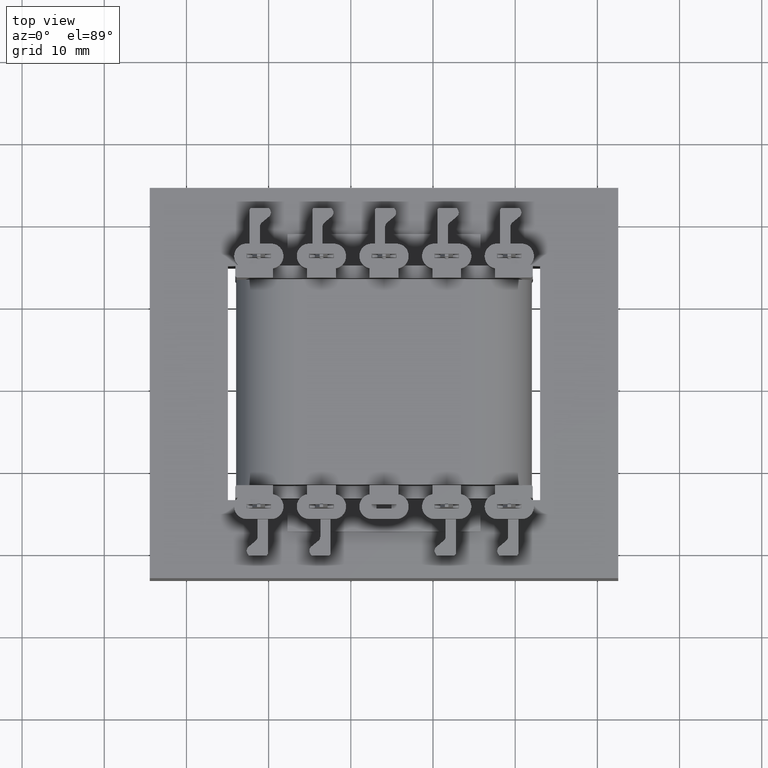
[diagram: clean part render]
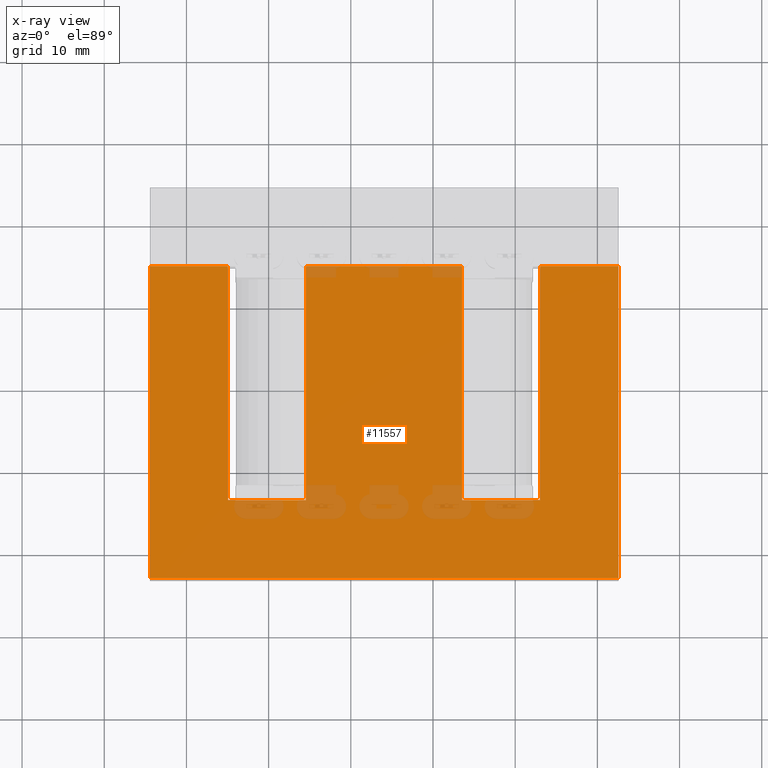
[diagram: x-ray — body ghosted, one internal face saturated and labeled with its STEP entity id]
A machine part, top view, then the same camera in x-ray: the body is ghosted and one INTERNAL B-rep face — a face not visible from any outside direction — is saturated and labeled: STEP entity #11557.
In plain terms, the highlighted planar face has unit normal (0, 0, 1).
Its self-contained STEP definition (entity closure, byte-faithful):
#4 = CARTESIAN_POINT ( 'NONE',  ( 9.499999999999998224, 2.891205793294678228E-15, 0.4000000000000000222 ) ) ;
#61 = CARTESIAN_POINT ( 'NONE',  ( -9.500000000000007105, 18.99999999999999645, 0.4000000000000000222 ) ) ;
#84 = VECTOR ( 'NONE', #1016, 1000.000000000000000 ) ;
#457 = VERTEX_POINT ( 'NONE', #3205 ) ;
#571 = ORIENTED_EDGE ( 'NONE', *, *, #2828, .F. ) ;
#677 = VECTOR ( 'NONE', #5501, 1000.000000000000000 ) ;
#688 = VECTOR ( 'NONE', #3456, 1000.000000000000000 ) ;
#880 = CARTESIAN_POINT ( 'NONE',  ( -2.312964634635741872E-15, 18.99999999999999645, 0.4000000000000000222 ) ) ;
#886 = EDGE_CURVE ( 'NONE', #6708, #4938, #6665, .T. ) ;
#898 = CARTESIAN_POINT ( 'NONE',  ( -2.312964634635741872E-15, 18.99999999999999645, 0.4000000000000000222 ) ) ;
#969 = EDGE_CURVE ( 'NONE', #13421, #2872, #11206, .T. ) ;
#1016 = DIRECTION ( 'NONE',  ( -1.000000000000000000, -1.826024711554533667E-16, 0.000000000000000000 ) ) ;
#1109 = ORIENTED_EDGE ( 'NONE', *, *, #5550, .F. ) ;
#1649 = LINE ( 'NONE', #5090, #3836 ) ;
#1705 = CARTESIAN_POINT ( 'NONE',  ( -28.50000000000000355, 18.99999999999999289, 0.4000000000000000222 ) ) ;
#1821 = FACE_OUTER_BOUND ( 'NONE', #5274, .T. ) ;
#2046 = LINE ( 'NONE', #14251, #6232 ) ;
#2130 = CARTESIAN_POINT ( 'NONE',  ( -19.00000000000000355, -4.625929269271486900E-15, 0.4000000000000000222 ) ) ;
#2200 = VECTOR ( 'NONE', #13080, 1000.000000000000000 ) ;
#2469 = ORIENTED_EDGE ( 'NONE', *, *, #2647, .F. ) ;
#2647 = EDGE_CURVE ( 'NONE', #7544, #8156, #9598, .T. ) ;
#2828 = EDGE_CURVE ( 'NONE', #13421, #7544, #6931, .T. ) ;
#2843 = CARTESIAN_POINT ( 'NONE',  ( 0.000000000000000000, 0.000000000000000000, 0.4000000000000000222 ) ) ;
#2872 = VERTEX_POINT ( 'NONE', #61 ) ;
#3205 = CARTESIAN_POINT ( 'NONE',  ( 28.50000000000000711, -19.00000000000000000, 0.4000000000000000222 ) ) ;
#3339 = CARTESIAN_POINT ( 'NONE',  ( 9.500000000000001776, -9.500000000000003553, 0.4000000000000000222 ) ) ;
#3456 = DIRECTION ( 'NONE',  ( -1.000000000000000000, -1.217349807703022362E-16, 0.000000000000000000 ) ) ;
#3836 = VECTOR ( 'NONE', #9532, 1000.000000000000000 ) ;
#3952 = LINE ( 'NONE', #10082, #84 ) ;
#4111 = ORIENTED_EDGE ( 'NONE', *, *, #9896, .T. ) ;
#4205 = CARTESIAN_POINT ( 'NONE',  ( -9.500000000000000000, -9.500000000000003553, 0.4000000000000000222 ) ) ;
#4315 = LINE ( 'NONE', #898, #10162 ) ;
#4342 = DIRECTION ( 'NONE',  ( 1.000000000000000000, -1.826024711554533420E-16, 0.000000000000000000 ) ) ;
#4759 = CARTESIAN_POINT ( 'NONE',  ( -19.00000000000000711, 18.99999999999999289, 0.4000000000000000222 ) ) ;
#4886 = CARTESIAN_POINT ( 'NONE',  ( -9.500000000000001776, -2.312964634635743450E-15, 0.4000000000000000222 ) ) ;
#4938 = VERTEX_POINT ( 'NONE', #9238 ) ;
#5084 = EDGE_CURVE ( 'NONE', #6708, #6832, #4315, .T. ) ;
#5090 = CARTESIAN_POINT ( 'NONE',  ( 28.50000000000000355, 2.602085213965211430E-15, 0.4000000000000000222 ) ) ;
#5274 = EDGE_LOOP ( 'NONE', ( #7216, #11909, #6018, #6115, #9835, #13846, #1109, #13476, #9023, #4111, #2469, #571 ) ) ;
#5471 = VERTEX_POINT ( 'NONE', #13003 ) ;
#5494 = EDGE_CURVE ( 'NONE', #11688, #5471, #9784, .T. ) ;
#5501 = DIRECTION ( 'NONE',  ( 2.434699615406045218E-16, -1.000000000000000000, 0.000000000000000000 ) ) ;
#5550 = EDGE_CURVE ( 'NONE', #457, #9299, #3952, .T. ) ;
#6018 = ORIENTED_EDGE ( 'NONE', *, *, #7083, .F. ) ;
#6115 = ORIENTED_EDGE ( 'NONE', *, *, #886, .F. ) ;
#6232 = VECTOR ( 'NONE', #6509, 1000.000000000000000 ) ;
#6316 = CARTESIAN_POINT ( 'NONE',  ( 9.499999999999992895, 18.99999999999999645, 0.4000000000000000222 ) ) ;
#6483 = EDGE_CURVE ( 'NONE', #11688, #457, #1649, .T. ) ;
#6509 = DIRECTION ( 'NONE',  ( 0.000000000000000000, -1.000000000000000000, 0.000000000000000000 ) ) ;
#6665 = LINE ( 'NONE', #2130, #677 ) ;
#6708 = VERTEX_POINT ( 'NONE', #4759 ) ;
#6832 = VERTEX_POINT ( 'NONE', #1705 ) ;
#6931 = LINE ( 'NONE', #4, #13478 ) ;
#6995 = LINE ( 'NONE', #4886, #7837 ) ;
#7083 = EDGE_CURVE ( 'NONE', #4938, #13174, #13249, .T. ) ;
#7135 = DIRECTION ( 'NONE',  ( 2.434699615406045218E-16, -1.000000000000000000, 0.000000000000000000 ) ) ;
#7216 = ORIENTED_EDGE ( 'NONE', *, *, #969, .T. ) ;
#7281 = DIRECTION ( 'NONE',  ( -0.000000000000000000, 0.000000000000000000, 1.000000000000000000 ) ) ;
#7363 = LINE ( 'NONE', #7432, #2200 ) ;
#7432 = CARTESIAN_POINT ( 'NONE',  ( -28.50000000000000000, -5.204170427930420494E-15, 0.4000000000000000222 ) ) ;
#7544 = VERTEX_POINT ( 'NONE', #3339 ) ;
#7550 = VECTOR ( 'NONE', #8534, 1000.000000000000000 ) ;
#7837 = VECTOR ( 'NONE', #7135, 1000.000000000000000 ) ;
#8156 = VERTEX_POINT ( 'NONE', #13528 ) ;
#8534 = DIRECTION ( 'NONE',  ( -1.000000000000000000, -1.217349807703022362E-16, 0.000000000000000000 ) ) ;
#8674 = CARTESIAN_POINT ( 'NONE',  ( 28.50000000000000000, 19.00000000000000000, 0.4000000000000000222 ) ) ;
#8696 = DIRECTION ( 'NONE',  ( 1.000000000000000000, 0.000000000000000000, 0.000000000000000000 ) ) ;
#8850 = CARTESIAN_POINT ( 'NONE',  ( 0.000000000000000000, -9.500000000000003553, 0.4000000000000000222 ) ) ;
#9022 = VECTOR ( 'NONE', #4342, 1000.000000000000000 ) ;
#9023 = ORIENTED_EDGE ( 'NONE', *, *, #5494, .T. ) ;
#9092 = CARTESIAN_POINT ( 'NONE',  ( -28.49999999999999645, -19.00000000000001066, 0.4000000000000000222 ) ) ;
#9238 = CARTESIAN_POINT ( 'NONE',  ( -19.00000000000000000, -9.500000000000003553, 0.4000000000000000222 ) ) ;
#9299 = VERTEX_POINT ( 'NONE', #9092 ) ;
#9532 = DIRECTION ( 'NONE',  ( 9.130123557772670799E-17, -1.000000000000000000, 0.000000000000000000 ) ) ;
#9598 = LINE ( 'NONE', #12005, #9022 ) ;
#9784 = LINE ( 'NONE', #880, #7550 ) ;
#9835 = ORIENTED_EDGE ( 'NONE', *, *, #5084, .T. ) ;
#9896 = EDGE_CURVE ( 'NONE', #5471, #8156, #2046, .T. ) ;
#10082 = CARTESIAN_POINT ( 'NONE',  ( 3.469446951953614978E-15, -19.00000000000000711, 0.4000000000000000222 ) ) ;
#10162 = VECTOR ( 'NONE', #12674, 1000.000000000000000 ) ;
#11206 = LINE ( 'NONE', #12298, #688 ) ;
#11557 = ADVANCED_FACE ( 'NONE', ( #1821 ), #12860, .T. ) ;
#11688 = VERTEX_POINT ( 'NONE', #8674 ) ;
#11909 = ORIENTED_EDGE ( 'NONE', *, *, #12899, .T. ) ;
#12005 = CARTESIAN_POINT ( 'NONE',  ( -1.734723475976807094E-15, -9.500000000000001776, 0.4000000000000000222 ) ) ;
#12015 = AXIS2_PLACEMENT_3D ( 'NONE', #2843, #7281, #14166 ) ;
#12298 = CARTESIAN_POINT ( 'NONE',  ( -2.312964634635741872E-15, 18.99999999999999645, 0.4000000000000000222 ) ) ;
#12674 = DIRECTION ( 'NONE',  ( -1.000000000000000000, -1.217349807703022362E-16, 0.000000000000000000 ) ) ;
#12860 = PLANE ( 'NONE',  #12015 ) ;
#12899 = EDGE_CURVE ( 'NONE', #2872, #13174, #6995, .T. ) ;
#13003 = CARTESIAN_POINT ( 'NONE',  ( 19.00000000000000355, 19.00000000000000000, 0.4000000000000000222 ) ) ;
#13080 = DIRECTION ( 'NONE',  ( 1.826024711554533420E-16, -1.000000000000000000, 0.000000000000000000 ) ) ;
#13174 = VERTEX_POINT ( 'NONE', #4205 ) ;
#13249 = LINE ( 'NONE', #8850, #13906 ) ;
#13421 = VERTEX_POINT ( 'NONE', #6316 ) ;
#13476 = ORIENTED_EDGE ( 'NONE', *, *, #6483, .F. ) ;
#13478 = VECTOR ( 'NONE', #13518, 1000.000000000000000 ) ;
#13518 = DIRECTION ( 'NONE',  ( 3.043374519257556522E-16, -1.000000000000000000, 0.000000000000000000 ) ) ;
#13528 = CARTESIAN_POINT ( 'NONE',  ( 19.00000000000000355, -9.500000000000005329, 0.4000000000000000222 ) ) ;
#13818 = EDGE_CURVE ( 'NONE', #6832, #9299, #7363, .T. ) ;
#13846 = ORIENTED_EDGE ( 'NONE', *, *, #13818, .T. ) ;
#13906 = VECTOR ( 'NONE', #8696, 1000.000000000000000 ) ;
#14166 = DIRECTION ( 'NONE',  ( 1.000000000000000000, 0.000000000000000000, 0.000000000000000000 ) ) ;
#14251 = CARTESIAN_POINT ( 'NONE',  ( 19.00000000000000355, 0.000000000000000000, 0.4000000000000000222 ) ) ;